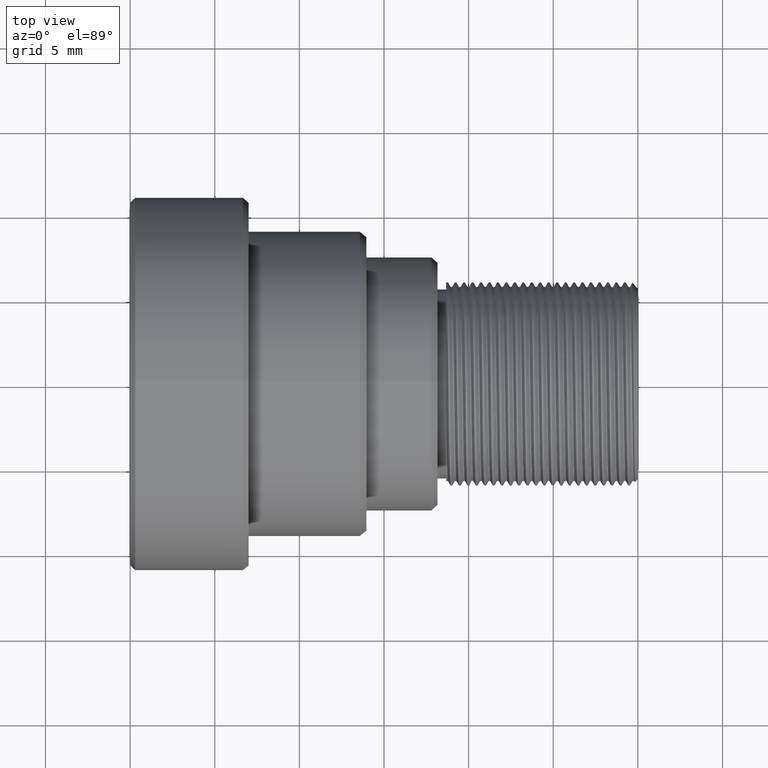
[diagram: clean part render]
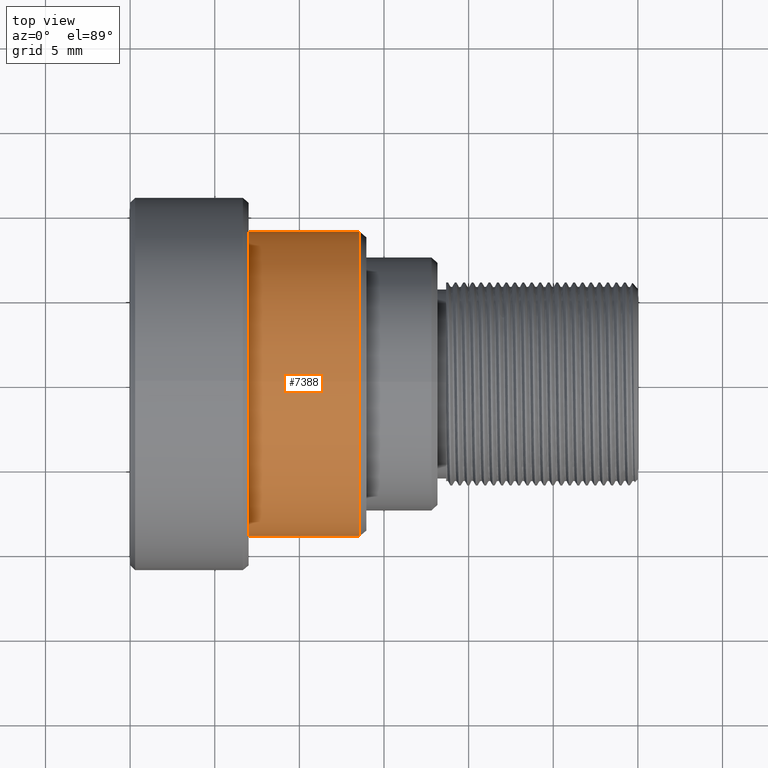
[diagram: same view with one face highlighted and labeled with its STEP entity id]
A machine part, top view. The second image highlights one B-rep face of the part: STEP entity #7388.
In plain terms, the highlighted cylindrical surface (bore or boss wall) has radius 9 mm, axis along (-1, 0, 0).
Its self-contained STEP definition (entity closure, byte-faithful):
#154 = ORIENTED_EDGE ( 'NONE', *, *, #1977, .T. ) ;
#177 = AXIS2_PLACEMENT_3D ( 'NONE', #620, #4398, #1489 ) ;
#620 = CARTESIAN_POINT ( 'NONE',  ( -16.42836409990999869, 0.000000000000000000, 0.000000000000000000 ) ) ;
#662 = VERTEX_POINT ( 'NONE', #9553 ) ;
#1479 = VERTEX_POINT ( 'NONE', #7462 ) ;
#1489 = DIRECTION ( 'NONE',  ( 0.000000000000000000, 0.000000000000000000, 1.000000000000000000 ) ) ;
#1684 = EDGE_CURVE ( 'NONE', #662, #662, #1880, .T. ) ;
#1880 = CIRCLE ( 'NONE', #7317, 9.000000000000001776 ) ;
#1977 = EDGE_CURVE ( 'NONE', #1479, #1479, #8554, .T. ) ;
#2274 = FACE_OUTER_BOUND ( 'NONE', #7679, .T. ) ;
#2319 = FACE_OUTER_BOUND ( 'NONE', #4825, .T. ) ;
#2375 = CARTESIAN_POINT ( 'NONE',  ( -23.00000000000000000, 0.000000000000000000, 0.000000000000000000 ) ) ;
#3669 = CARTESIAN_POINT ( 'NONE',  ( 1.500000000000000000, 0.000000000000000000, 0.000000000000000000 ) ) ;
#4355 = CYLINDRICAL_SURFACE ( 'NONE', #6861, 9.000000000000001776 ) ;
#4398 = DIRECTION ( 'NONE',  ( -1.000000000000000000, 0.000000000000000000, 0.000000000000000000 ) ) ;
#4451 = DIRECTION ( 'NONE',  ( -1.000000000000000000, 0.000000000000000000, 0.000000000000000000 ) ) ;
#4825 = EDGE_LOOP ( 'NONE', ( #5203 ) ) ;
#5203 = ORIENTED_EDGE ( 'NONE', *, *, #1684, .T. ) ;
#5230 = DIRECTION ( 'NONE',  ( 0.000000000000000000, 0.000000000000000000, 1.000000000000000000 ) ) ;
#6012 = DIRECTION ( 'NONE',  ( 1.000000000000000000, -0.000000000000000000, -0.000000000000000000 ) ) ;
#6861 = AXIS2_PLACEMENT_3D ( 'NONE', #3669, #4451, #5230 ) ;
#7230 = DIRECTION ( 'NONE',  ( 0.000000000000000000, 0.000000000000000000, 1.000000000000000000 ) ) ;
#7317 = AXIS2_PLACEMENT_3D ( 'NONE', #2375, #6012, #7230 ) ;
#7388 = ADVANCED_FACE ( 'NONE', ( #2319, #2274 ), #4355, .T. ) ;
#7462 = CARTESIAN_POINT ( 'NONE',  ( -16.42836409990999869, 0.000000000000000000, 9.000000000000001776 ) ) ;
#7679 = EDGE_LOOP ( 'NONE', ( #154 ) ) ;
#8554 = CIRCLE ( 'NONE', #177, 9.000000000000001776 ) ;
#9553 = CARTESIAN_POINT ( 'NONE',  ( -23.00000000000000000, 0.000000000000000000, 9.000000000000001776 ) ) ;